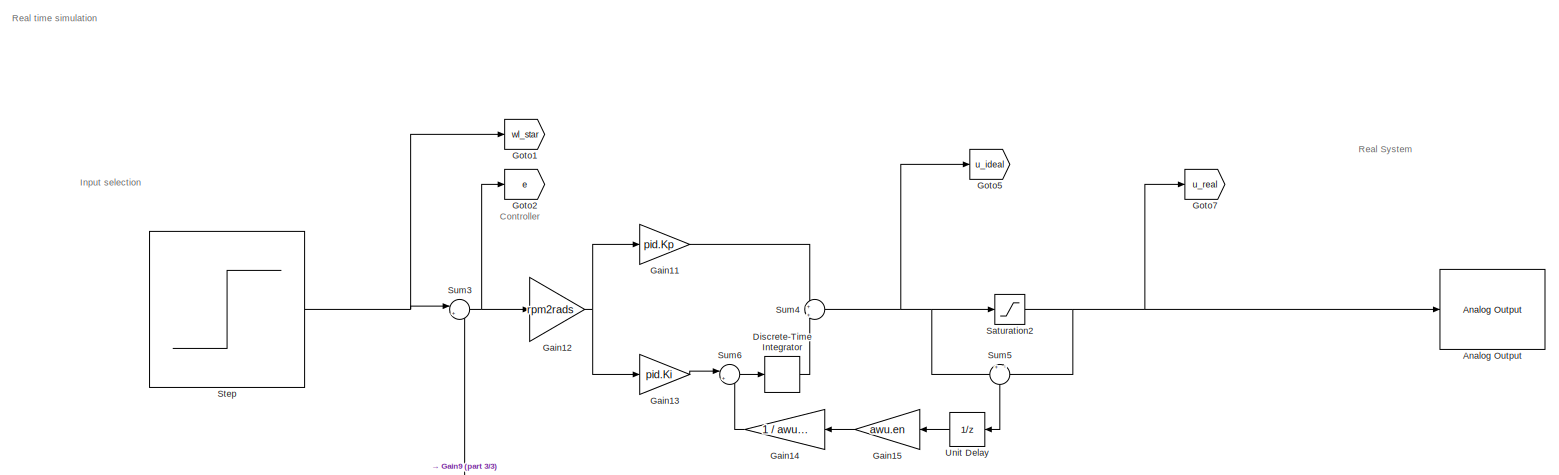
[diagram: root canvas - part 1/3, top center region]
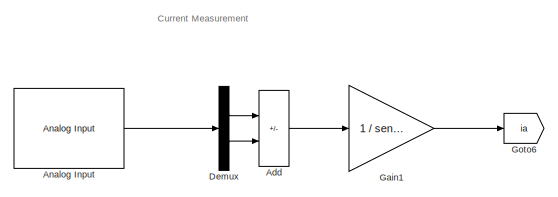
[diagram: root canvas - part 2/3, top right region]
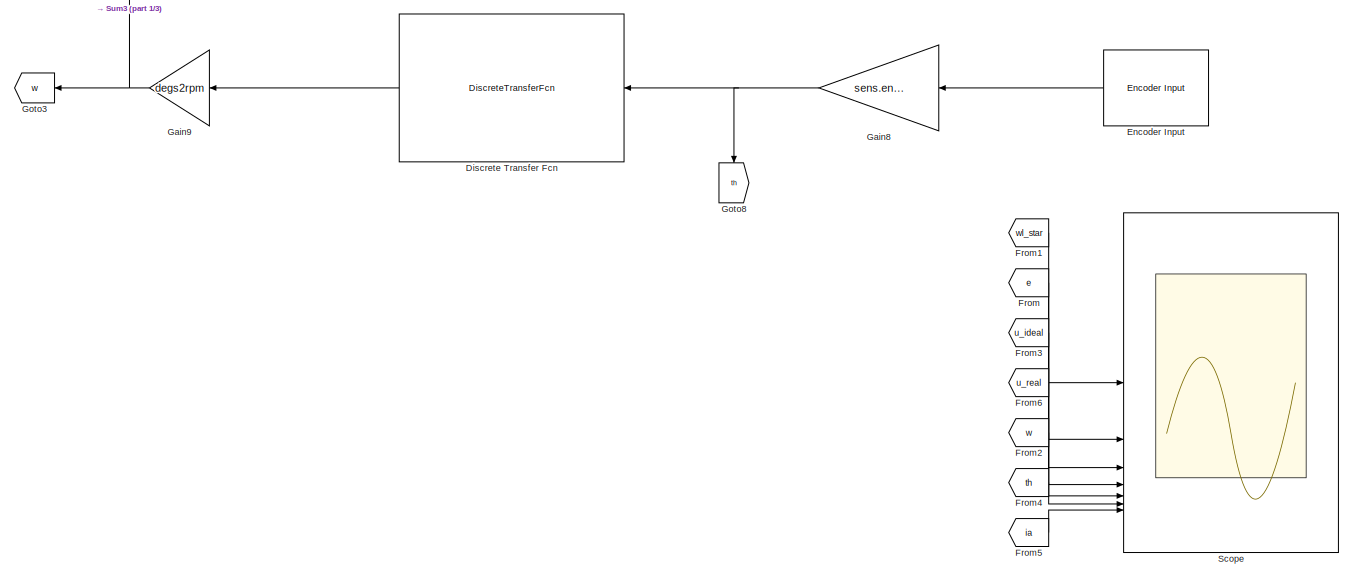
[diagram: root canvas - part 3/3, bottom center region]
MODEL slx_23a9e09bb01a
KIND model
CONFIG AbsTol = auto
CONFIG EnableMultiTasking = off
CONFIG FixedStep = sys.Ts
CONFIG MaxStep = 0.0001
CONFIG MinStep = auto
CONFIG RelTol = 1e-3
CONFIG SampleTimeConstraint = Unconstrained
CONFIG SolverName = FixedStepDiscrete
CONFIG StartTime = 0.0
CONFIG StopTime = 6
BLOCK [Sum] Add
  IconShape = rectangular
  Inputs = +-
BLOCK [Reference] Analog Input  REF=sldrtlib/Analog Input
  AttributesFormatString = National Instruments\nPCIe-6321 [auto]
  SourceBlock = sldrtlib/Analog Input
  SourceType = Simulink Desktop Real-Time Analog Input
BLOCK [Reference] Analog Output  REF=sldrtlib/Analog Output
  AttributesFormatString = National Instruments\nPCIe-6321 [auto]
  SourceBlock = sldrtlib/Analog Output
  SourceType = Simulink Desktop Real-Time Analog Output
BLOCK [Demux] Demux
  Outputs = 2
BLOCK [DiscreteTransferFcn] Discrete Transfer Fcn
  Denominator = dend
  InputPortMap = u0
  Numerator = numd
  SampleTime = sys.Ts
BLOCK [DiscreteIntegrator] Discrete-Time Integrator
  ICPrevOutput = DiscIntNeverNeededParam
  ICPrevScaledInput = DiscIntNeverNeededParam
  InitialConditionSetting = Auto
  SampleTime = sys.Ts
BLOCK [Reference] Encoder Input  REF=sldrtlib/Encoder Input
  AttributesFormatString = National Instruments\nPCIe-6321 [auto]
  SourceBlock = sldrtlib/Encoder Input
  SourceType = Simulink Desktop Real-Time Encoder Input
BLOCK [From] From
  GotoTag = e
BLOCK [From] From1
  GotoTag = wl_star
BLOCK [From] From2
  GotoTag = w
BLOCK [From] From3
  GotoTag = u_ideal
BLOCK [From] From4
  GotoTag = th
BLOCK [From] From5
  GotoTag = ia
BLOCK [From] From6
  GotoTag = u_real
BLOCK [Gain] Gain1
  Gain = 1 / sens.curr.Rs
BLOCK [Gain] Gain11
  Gain = pid.Kp
BLOCK [Gain] Gain12
  Gain = rpm2rads
BLOCK [Gain] Gain13
  Gain = pid.Ki
BLOCK [Gain] Gain14
  Gain = 1 / awu.Tw
BLOCK [Gain] Gain15
  Gain = awu.en
BLOCK [Gain] Gain8
  Gain = sens.enc.pulse2deg
BLOCK [Gain] Gain9
  Gain = degs2rpm
BLOCK [Goto] Goto1
  GotoTag = wl_star
BLOCK [Goto] Goto2
  GotoTag = e
BLOCK [Goto] Goto3
  GotoTag = w
BLOCK [Goto] Goto5
  GotoTag = u_ideal
BLOCK [Goto] Goto6
  GotoTag = ia
BLOCK [Goto] Goto7
  GotoTag = u_real
BLOCK [Goto] Goto8
  GotoTag = th
  NameLocation = right
BLOCK [Saturate] Saturation2
  LowerLimit = -dac.V
  UpperLimit = dac.V
BLOCK [Scope] Scope
  Floating = off
  NumInputPorts = 7
  ScopeSpecificationString = Simulink.scopes.TimeScopeBlockCfg('CurrentConfiguration', extmgr.ConfigurationSet(extmgr.Configuration('Core','General UI',true),extmgr.Configuration('Core','Source UI',true),extmgr.Configuration('Sources','WiredSimulink',true,'DataLogging',true,'DataLoggingSaveFormat','StructureWithTime','DataLoggingVariableName','step_resp'),extmgr.Configuration('Visuals','Time Domain',true,'SerializedDisplays',...<+7005ch>
BLOCK [Step] Step
  After = step.A
  SampleTime = 0
  Time = step.t
BLOCK [Sum] Sum3
  Inputs = |+-
BLOCK [Sum] Sum4
  Inputs = +|+
BLOCK [Sum] Sum5
  Inputs = +|-
  NameLocation = left
BLOCK [Sum] Sum6
  Inputs = |+-
BLOCK [UnitDelay] Unit Delay
  HasFrameUpgradeWarning = on
  SampleTime = -1
ANNOTATION (root): Controller
ANNOTATION (root): Current Measurement
ANNOTATION (root): Input selection
ANNOTATION (root): Real System
ANNOTATION (root): Real time simulation
LINE Add:1 -> Gain1:1
LINE Analog Input:1 -> Demux:1
LINE Demux:1 -> Add:1
LINE Demux:2 -> Add:2
LINE Discrete Transfer Fcn:1 -> Gain9:1
LINE Discrete-Time Integrator:1 -> Sum4:2
LINE Encoder Input:1 -> Gain8:1
LINE From1:1 -> Scope:1
LINE From2:1 -> Scope:5
LINE From3:1 -> Scope:3
LINE From4:1 -> Scope:6
LINE From5:1 -> Scope:7
LINE From6:1 -> Scope:4
LINE From:1 -> Scope:2
LINE Gain11:1 -> Sum4:1
NET Gain12:1 -> Gain11:1, Gain13:1
LINE Gain13:1 -> Sum6:1
LINE Gain14:1 -> Sum6:2
LINE Gain15:1 -> Gain14:1
LINE Gain1:1 -> Goto6:1
NET Gain8:1 -> Discrete Transfer Fcn:1, Goto8:1
NET Gain9:1 -> Goto3:1, Sum3:2
NET Saturation2:1 -> Analog Output:1, Goto7:1, Sum5:2
NET Step:1 -> Goto1:1, Sum3:1
NET Sum3:1 -> Gain12:1, Goto2:1
NET Sum4:1 -> Goto5:1, Saturation2:1, Sum5:1
LINE Sum5:1 -> Unit Delay:1
LINE Sum6:1 -> Discrete-Time Integrator:1
LINE Unit Delay:1 -> Gain15:1
note: NET lines group one-source signal fan-out (src -> all destinations, sorted); 1:1 wires keep LINE
